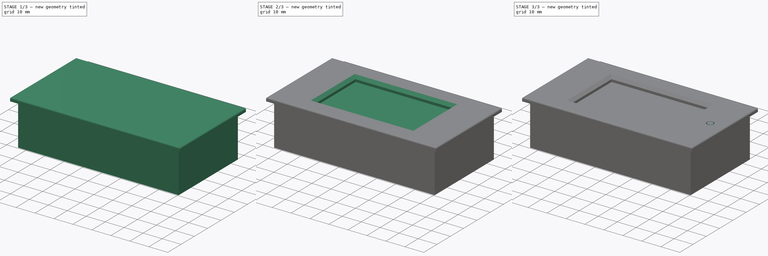
[diagram: build sequence overview — one tinted view per stage of 3, left to right]
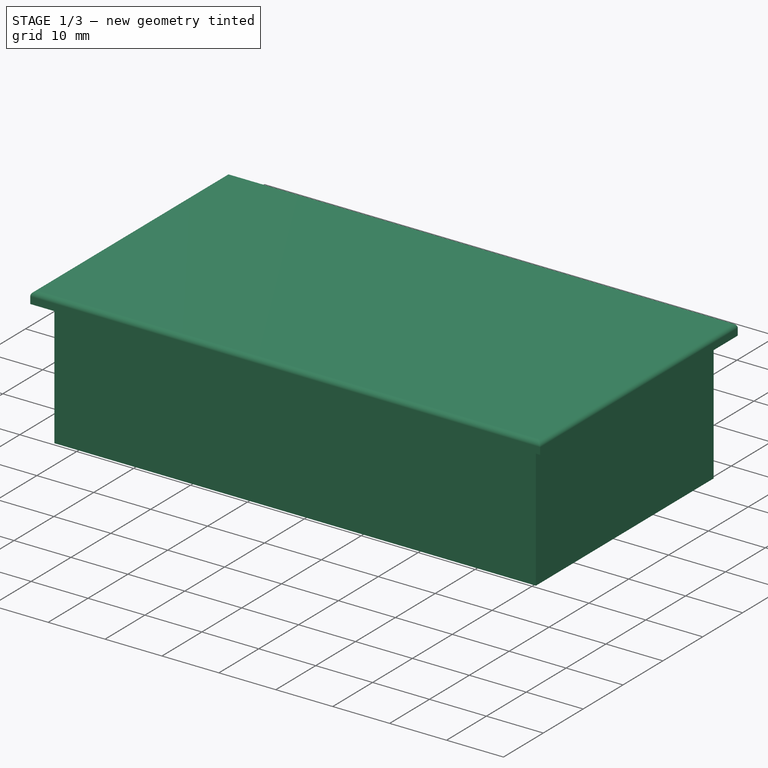
[diagram: stage 1 of 3 — iso view after this stage's code; geometry added in this stage tinted green]
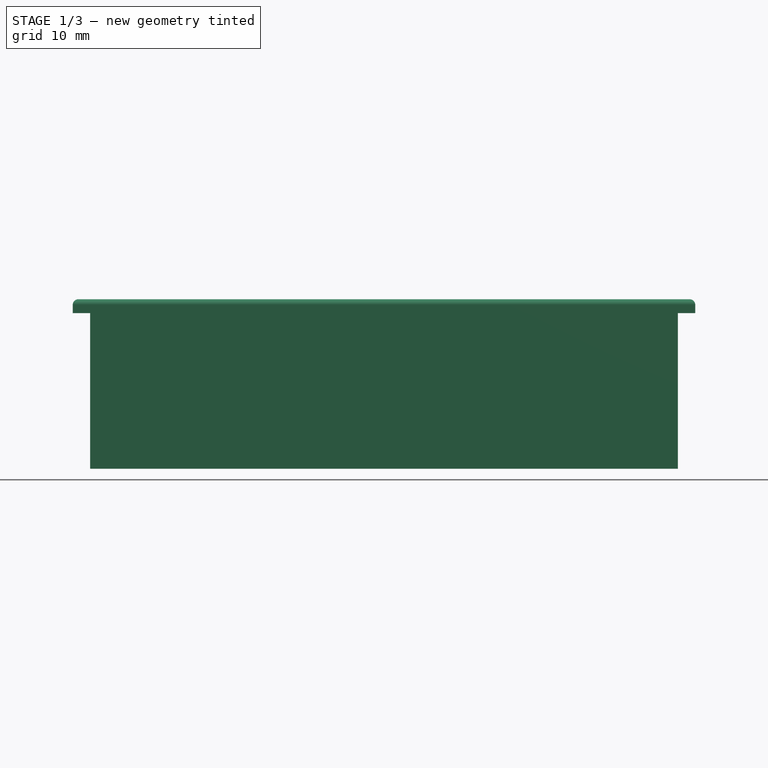
[diagram: stage 1 of 3 — front view after this stage's code; geometry added in this stage tinted green]
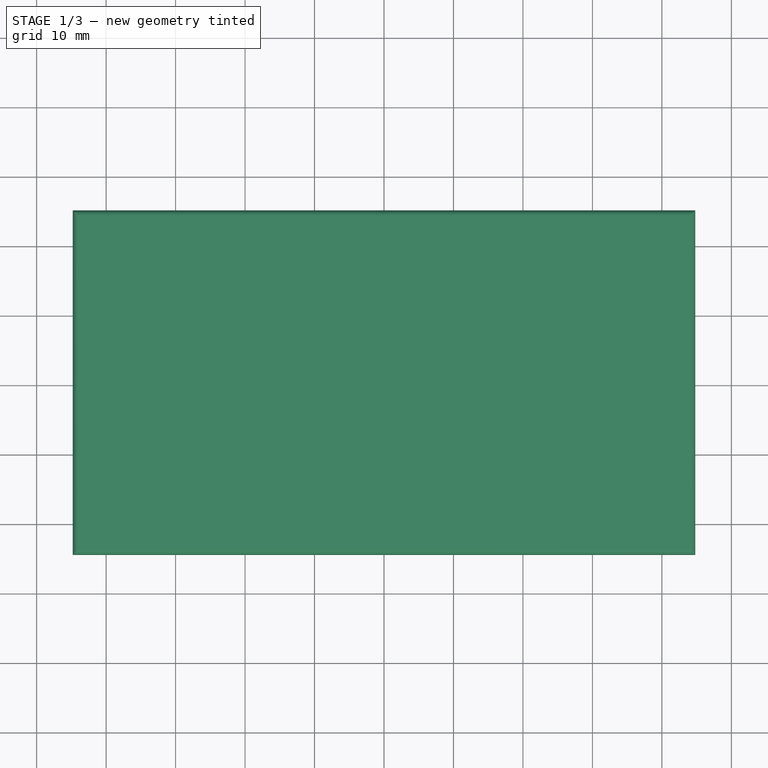
[diagram: stage 1 of 3 — top view after this stage's code; geometry added in this stage tinted green]
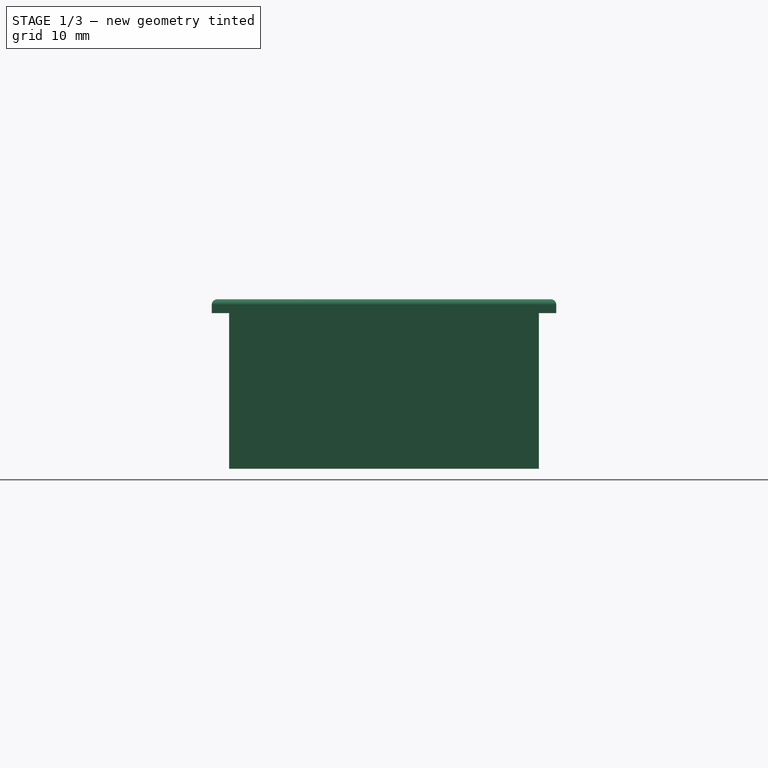
[diagram: stage 1 of 3 — right view after this stage's code; geometry added in this stage tinted green]
FCSTD DOCUMENT  (FreeCAD 0.19R24267 +148 (Git))
Label: KTD132_003
License: Public Domain
LicenseURL: http://en.wikipedia.org/wiki/Public_domain
objects: Sketcher::SketchObject×6, PartDesign::Pad×3, PartDesign::Pocket×3, PartDesign::Plane×2, Spreadsheet::Sheet×1, PartDesign::Fillet×1, PartDesign::Chamfer×1, PartDesign::Body×1, App::Part×1
note: 25 computed .brp shape members not serialized (recipe doc carries the construction recipe); baked Part::Feature solids carry a one-line shape summary decoded from their .brp

FEATURE [Spreadsheet::Sheet] Spreadsheet  label="KTD132"
  cells = A1=largeur; B1(largeur)=49.6; A2=longueur; B2(longueur)=89.59999999999999; A3=hauteur; B3(hauteur)=24.4; A4=trouLargeur; B4(trouLargeur)=44.6; A5=trouLongeur; B5(trouLongeur)=84.59999999999999; A6=trouJeuLong; B6(trouJeuLong)=2.5; A7=trouJeuLarg; B7(trouJeuLarg)=0.8; A8=epaisseurRebord; B8(epaisseurRebord)=2; A9=ecranLargeur; B9(ecranLargeur)=30; A10=ecranLongueur; B10(ecranLongueur)=51; A11=ecranPRof; B11(ecranPRof)=2.82; A12=boutonPosHorizontale; B12(boutonPosHorizontale)=37; A13=boutonDiam; B13(boutonDiam)=3.32; A14=boutonJeuDiam; B14(boutonJeuDiam)=0.3; A15=boutonHauteur; B15(boutonHauteur)=3; A16=lumiereConnecteurLargeur; B16(lumiereConnecteurLargeur)=9; A17=lumiereConnecteurLongueur; B17(lumiereConnecteurLongueur)=26; A18=lumiereConnecteurHauteur; B18(lumiereConnecteurHauteur)=10
FEATURE [Sketcher::SketchObject] Sketch
  FullyConstrained = true
  MapMode = 5
  Support = -> [XY_Plane]
  expr: Constraints[9] = <<KTD132>>.trouLargeur
  expr: Constraints[8] = <<KTD132>>.trouLongeur
  sketch-geometry (4):
    g0: LineSegment StartX=-42.3 StartY=22.3 StartZ=0 EndX=42.3 EndY=22.3 EndZ=0
    g1: LineSegment StartX=42.3 StartY=22.3 StartZ=0 EndX=42.3 EndY=-22.3 EndZ=0
    g2: LineSegment StartX=42.3 StartY=-22.3 StartZ=0 EndX=-42.3 EndY=-22.3 EndZ=0
    g3: LineSegment StartX=-42.3 StartY=-22.3 StartZ=0 EndX=-42.3 EndY=22.3 EndZ=0
  constraints (10):
    c: Coincident(g0,g1)
    c: Coincident(g1,g2)
    c: Coincident(g2,g3)
    c: Coincident(g3,g0)
    c: Horizontal(g2)
    c: Vertical(g1)
    c: Symmetric(g0,g0,g-2)
    c: Symmetric(g0,g2,g-1)
    c: DistanceX(g0,g0) = 84.6
    c: DistanceY(g1,g1) = 44.6
FEATURE [PartDesign::Pad] Pad  label="corpsPrincipal"
  AllowMultiFace = false
  Direction = (1,1,1)
  Length = 22.4
  Length2 = 100
  Profile = -> Sketch
  Reversed = true
  Type = 0
  expr: Length = <<KTD132>>.hauteur - <<KTD132>>.epaisseurRebord
FEATURE [Sketcher::SketchObject] Sketch001
  FullyConstrained = true
  MapMode = 5
  Support = -> [XY_Plane001]
  expr: Constraints[10] = <<KTD132>>.largeur
  expr: Constraints[9] = <<KTD132>>.longueur
  sketch-geometry (4):
    g0: LineSegment StartX=-44.8 StartY=24.8 StartZ=0 EndX=44.8 EndY=24.8 EndZ=0
    g1: LineSegment StartX=44.8 StartY=24.8 StartZ=0 EndX=44.8 EndY=-24.8 EndZ=0
    g2: LineSegment StartX=44.8 StartY=-24.8 StartZ=0 EndX=-44.8 EndY=-24.8 EndZ=0
    g3: LineSegment StartX=-44.8 StartY=-24.8 StartZ=0 EndX=-44.8 EndY=24.8 EndZ=0
  constraints (11):
    c: Coincident(g0,g1)
    c: Coincident(g1,g2)
    c: Coincident(g2,g3)
    c: Coincident(g3,g0)
    c: Horizontal(g0)
    c: Horizontal(g2)
    c: Vertical(g1)
    c: Vertical(g3)
    c: Symmetric(g0,g1,g-1)
    c: DistanceX(g0,g0) = 89.6
    c: DistanceY(g1,g1) = 49.6
FEATURE [PartDesign::Pad] Pad001
  AllowMultiFace = false
  BaseFeature = -> Pad
  Direction = (1,1,1)
  Length = 2
  Length2 = 100
  Profile = -> Sketch001
  Type = 0
  expr: Length = <<KTD132>>.epaisseurRebord
FEATURE [PartDesign::Fillet] Fillet  label="faceAvant"
  Base = -> Pad001 [Edge16,Edge10,Edge4,Edge7]
  BaseFeature = -> Pad001
  Radius = 0.8
  SupportTransform = false
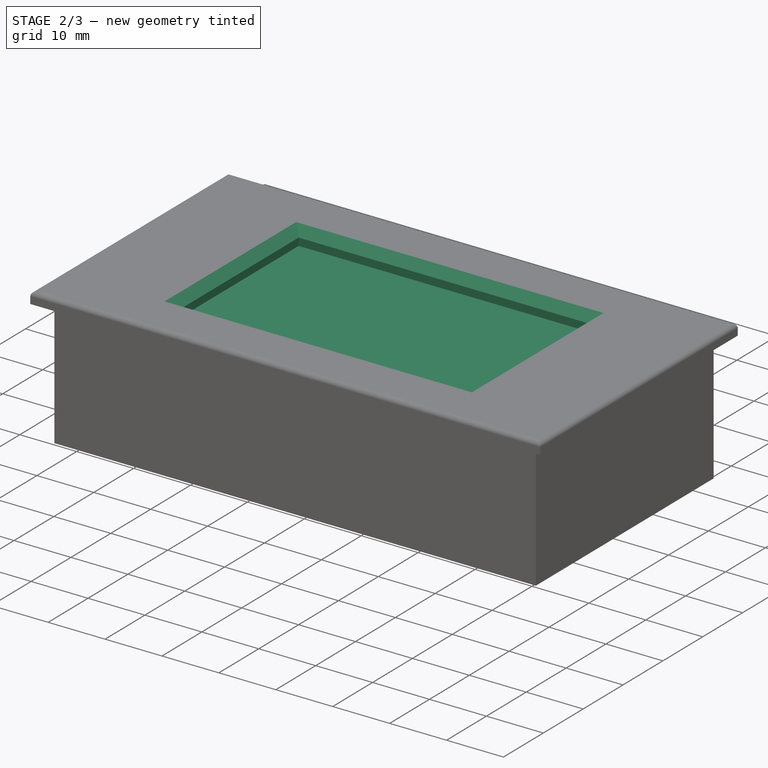
[diagram: stage 2 of 3 — iso view after this stage's code; geometry added in this stage tinted green]
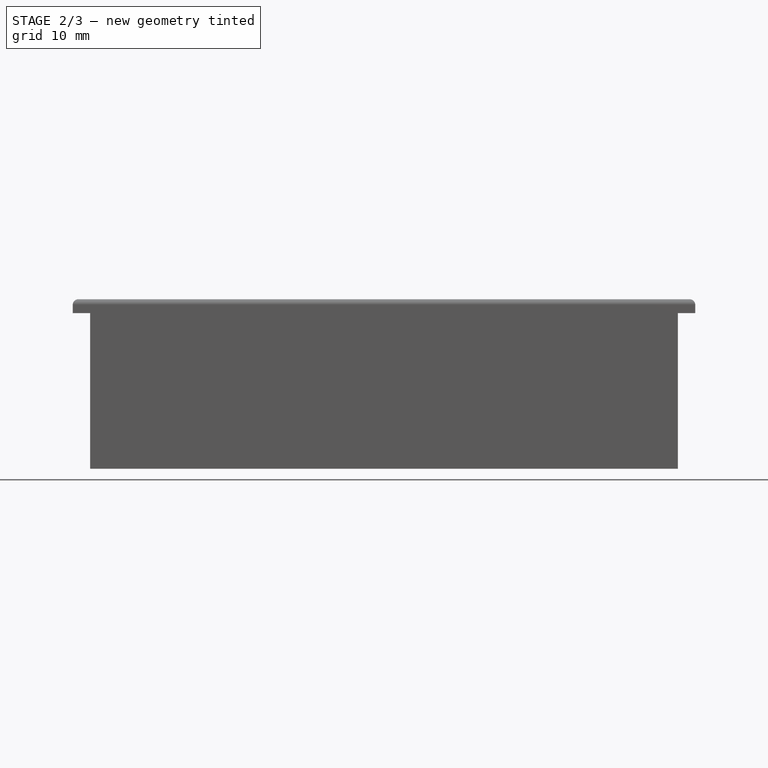
[diagram: stage 2 of 3 — front view after this stage's code; geometry added in this stage tinted green]
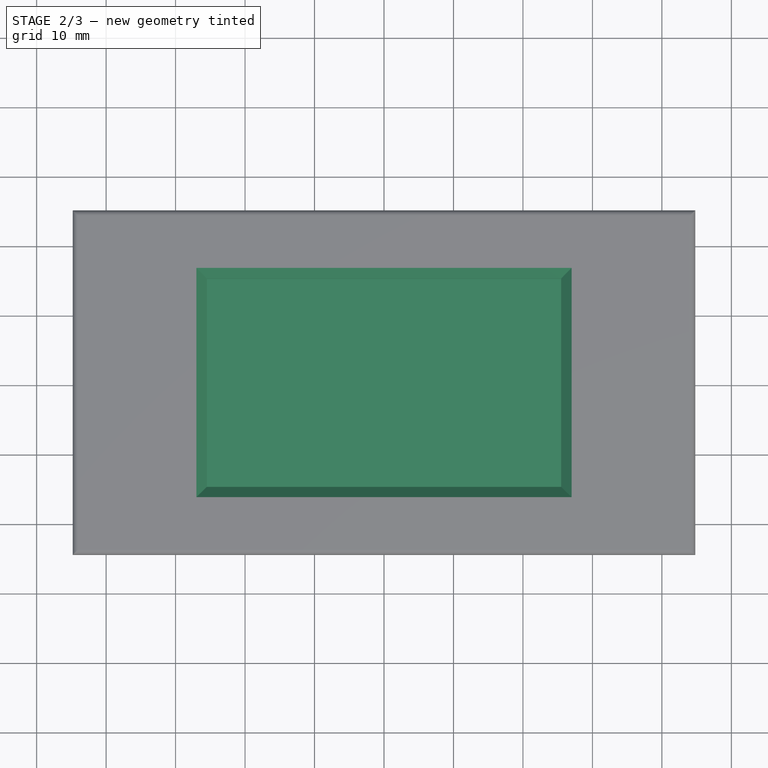
[diagram: stage 2 of 3 — top view after this stage's code; geometry added in this stage tinted green]
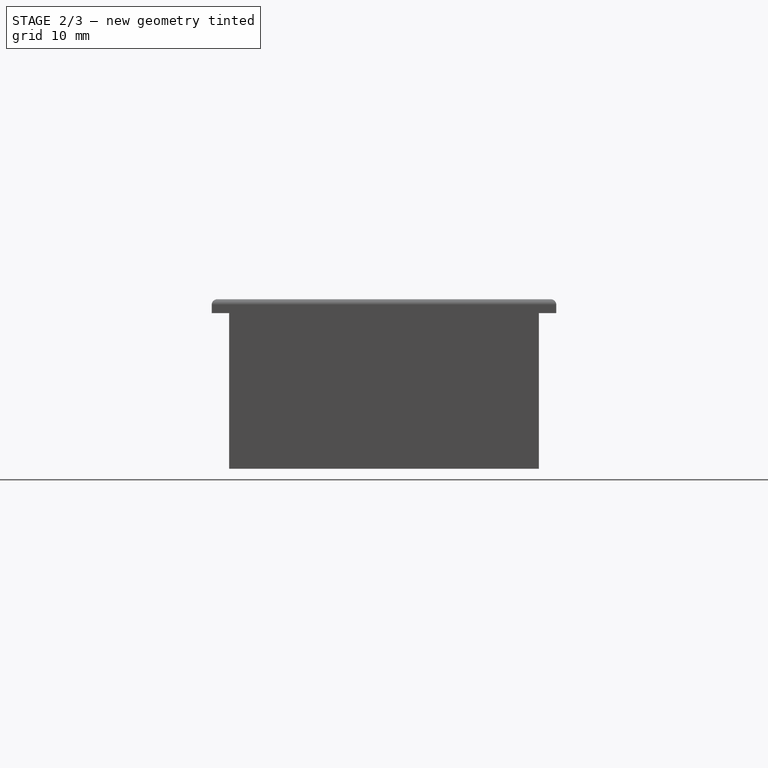
[diagram: stage 2 of 3 — right view after this stage's code; geometry added in this stage tinted green]
FEATURE [Sketcher::SketchObject] Sketch002
  FullyConstrained = true
  MapMode = 5
  Placement = pos=(0,0,2) rot=(0,0,1;0rad)
  Support = -> [Fillet]
  expr: Constraints[9] = <<KTD132>>.ecranLargeur
  expr: Constraints[8] = <<KTD132>>.ecranLongueur
  sketch-geometry (4):
    g0: LineSegment StartX=-25.5 StartY=15 StartZ=0 EndX=25.5 EndY=15 EndZ=0
    g1: LineSegment StartX=25.5 StartY=15 StartZ=0 EndX=25.5 EndY=-15 EndZ=0
    g2: LineSegment StartX=25.5 StartY=-15 StartZ=0 EndX=-25.5 EndY=-15 EndZ=0
    g3: LineSegment StartX=-25.5 StartY=-15 StartZ=0 EndX=-25.5 EndY=15 EndZ=0
  constraints (11):
    c: Coincident(g0,g1)
    c: Coincident(g1,g2)
    c: Coincident(g2,g3)
    c: Coincident(g3,g0)
    c: Horizontal(g0)
    c: Horizontal(g2)
    c: Vertical(g1)
    c: Vertical(g3)
    c: DistanceX(g0,g0) = 51
    c: DistanceY(g1,g1) = 30
    c: Symmetric(g0,g1,g-1)
FEATURE [PartDesign::Pocket] Pocket  label="ecran"
  AllowMultiFace = false
  BaseFeature = -> Fillet
  Length = 2.82
  Length2 = 100
  Profile = -> Sketch002
  Type = 0
  expr: Length = <<KTD132>>.ecranPRof
FEATURE [PartDesign::Chamfer] Chamfer  label="ecranChamfrein"
  Angle = 45
  Base = -> Pocket [Edge27,Edge24,Edge26,Edge25]
  BaseFeature = -> Pocket
  ChamferType = 0
  FlipDirection = false
  Size = 1.5
  Size2 = 1
  SupportTransform = false
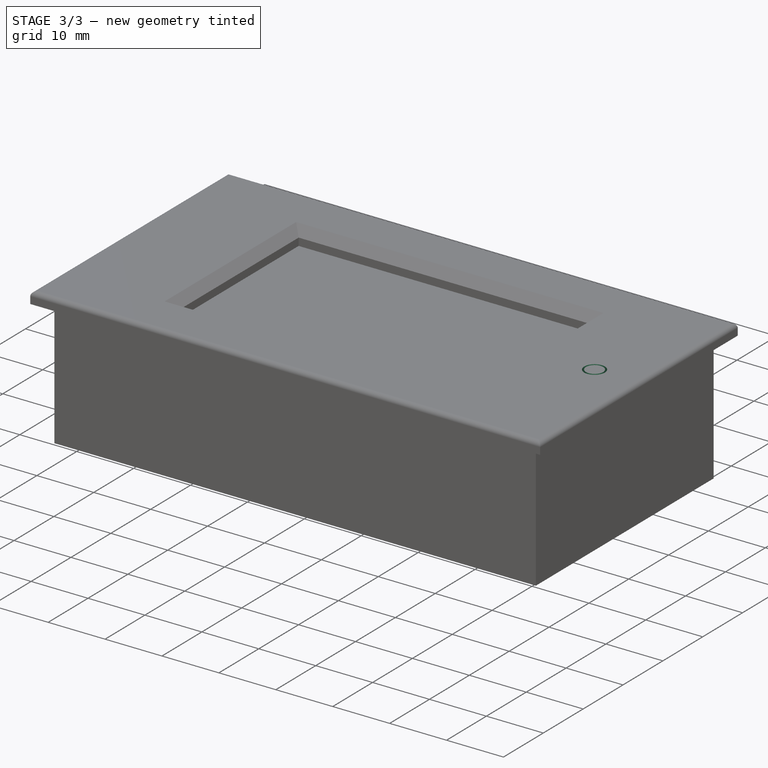
[diagram: stage 3 of 3 — iso view after this stage's code; geometry added in this stage tinted green]
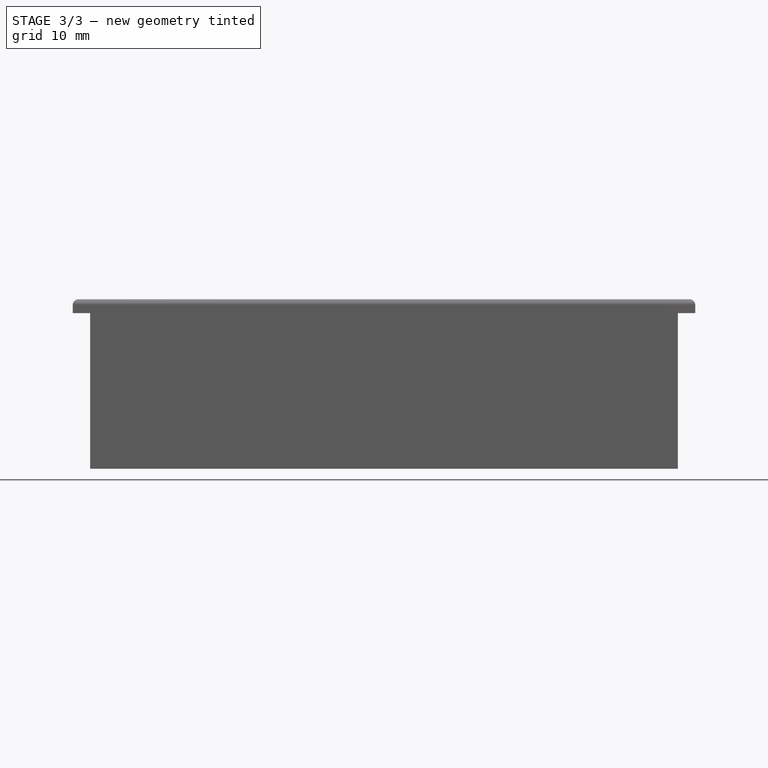
[diagram: stage 3 of 3 — front view after this stage's code; geometry added in this stage tinted green]
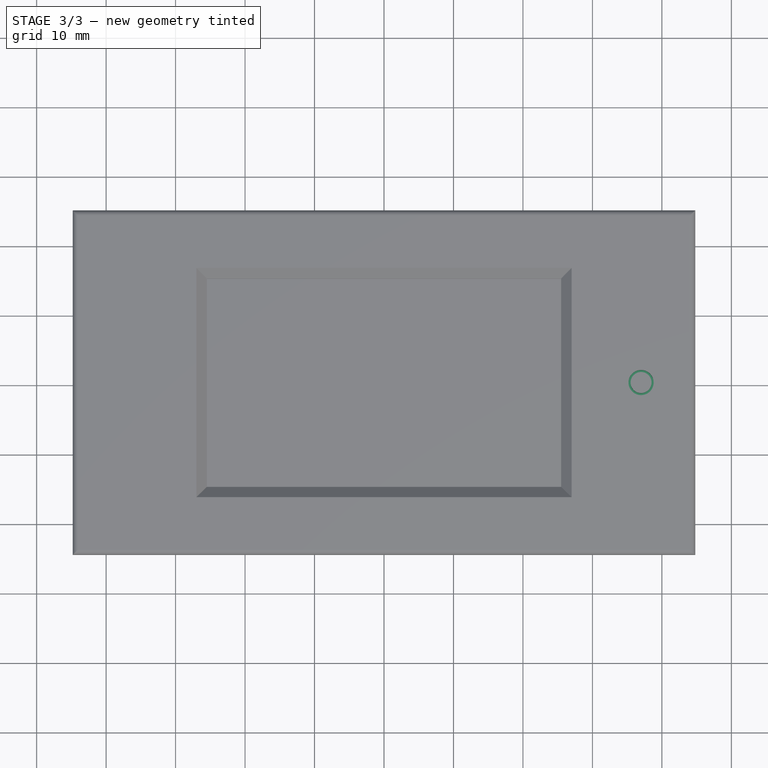
[diagram: stage 3 of 3 — top view after this stage's code; geometry added in this stage tinted green]
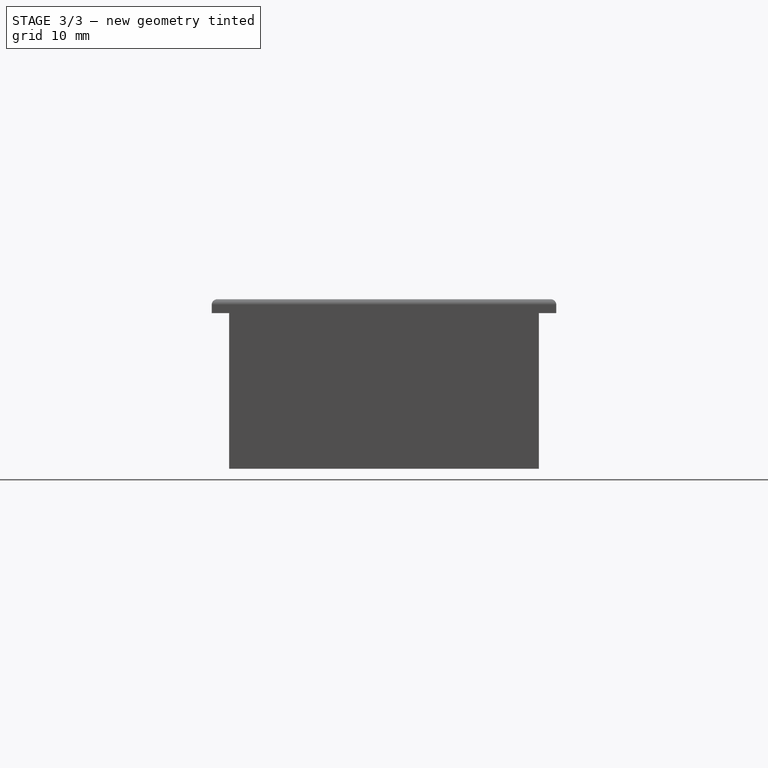
[diagram: stage 3 of 3 — right view after this stage's code; geometry added in this stage tinted green]
FEATURE [Sketcher::SketchObject] Sketch003  label="sk_bouton"
  FullyConstrained = true
  MapMode = 5
  Placement = pos=(0,0,2) rot=(0,0,1;0rad)
  Support = -> [Chamfer]
  expr: Constraints[2] = <<KTD132>>.boutonDiam + <<KTD132>>.boutonJeuDiam
  expr: Constraints[1] = <<KTD132>>.boutonPosHorizontale
  sketch-geometry (1):
    g0: Circle CenterX=37 CenterY=0 CenterZ=0 NormalX=0 NormalY=0 NormalZ=1 AngleXU=0 Radius=1.81
  constraints (3):
    c: PointOnObject(g0,g-1)
    c: DistanceX(g-1,g0) = 37
    c: Diameter(g0) = 3.62
FEATURE [PartDesign::Pocket] Pocket001  label="boutonTrou"
  AllowMultiFace = false
  BaseFeature = -> Chamfer
  Length = 3
  Length2 = 100
  Profile = -> Sketch003
  Type = 0
  expr: Length = <<KTD132>>.boutonHauteur
FEATURE [PartDesign::Plane] DatumPlane
  AttachmentOffset = pos=(0,0,-22.4) rot=(0,0,1;0rad)
  Length = 60
  MapMode = 5
  Placement = pos=(0,0,-22.4) rot=(0,0,1;0rad)
  ResizeMode = 0
  Support = -> [XY_Plane001]
  Width = 60
  expr: .AttachmentOffset.Base.z = -(<<KTD132>>.hauteur - <<KTD132>>.epaisseurRebord)
FEATURE [Sketcher::SketchObject] Sketch006  label="sk_trouConnecteurs"
  FullyConstrained = true
  MapMode = 5
  Placement = pos=(0,0,-22.4) rot=(0,0,1;0rad)
  Support = -> [DatumPlane]
  expr: Constraints[10] = <<KTD132>>.trouLongeur / 2 - <<KTD132>>.lumiereConnecteurLargeur
  expr: Constraints[8] = <<KTD132>>.lumiereConnecteurLongueur
  expr: Constraints[7] = <<KTD132>>.lumiereConnecteurLargeur
  sketch-geometry (4):
    g0: LineSegment StartX=-42.3 StartY=13 StartZ=0 EndX=-33.3 EndY=13 EndZ=0
    g1: LineSegment StartX=-33.3 StartY=13 StartZ=0 EndX=-33.3 EndY=-13 EndZ=0
    g2: LineSegment StartX=-33.3 StartY=-13 StartZ=0 EndX=-42.3 EndY=-13 EndZ=0
    g3: LineSegment StartX=-42.3 StartY=-13 StartZ=0 EndX=-42.3 EndY=13 EndZ=0
  constraints (11):
    c: Coincident(g0,g1)
    c: Coincident(g1,g2)
    c: Coincident(g2,g3)
    c: Coincident(g3,g0)
    c: Horizontal(g0)
    c: Horizontal(g2)
    c: Vertical(g1)
    c: DistanceX(g0,g0) = 9
    c: DistanceY(g3,g3) = 26
    c: Symmetric(g0,g2,g-1)
    c: DistanceX(g1,g-1) = 33.3
FEATURE [PartDesign::Pocket] Pocket002
  BaseFeature = -> Pocket001
  Length = 10
  Length2 = 100
  Profile = -> Sketch006
  Reversed = true
  Type = 0
  expr: Length = <<KTD132>>.lumiereConnecteurHauteur
FEATURE [PartDesign::Plane] DatumPlane001  label="planbaseBouton"
  AttachmentOffset = pos=(0,0,-1) rot=(0,0,1;0rad)
  Length = 60
  MapMode = 5
  Placement = pos=(0,0,-1) rot=(0,0,1;0rad)
  ResizeMode = 0
  Support = -> [XY_Plane001]
  Width = 60
  expr: .AttachmentOffset.Base.z = -(<<KTD132>>.boutonHauteur - <<KTD132>>.epaisseurRebord)
FEATURE [Sketcher::SketchObject] Sketch007
  FullyConstrained = true
  MapMode = 5
  Placement = pos=(0,0,-1) rot=(0,0,1;0rad)
  Support = -> [DatumPlane001]
  expr: Constraints[2] = <<KTD132>>.boutonDiam - <<KTD132>>.boutonJeuDiam
  expr: Constraints[1] = <<KTD132>>.boutonPosHorizontale
  sketch-geometry (1):
    g0: Circle CenterX=37 CenterY=0 CenterZ=0 NormalX=0 NormalY=0 NormalZ=1 AngleXU=0 Radius=1.51
  constraints (3):
    c: PointOnObject(g0,g-1)
    c: DistanceX(g-1,g0) = 37
    c: Diameter(g0) = 3.02
FEATURE [PartDesign::Pad] Pad002
  BaseFeature = -> Pocket002
  Direction = (1,1,1)
  Length = 3
  Length2 = 100
  Profile = -> Sketch007
  Type = 0
  expr: Length = <<KTD132>>.boutonHauteur
FEATURE [PartDesign::Body] Body
  Group = -> [Sketch,Pad,Sketch001,Pad001,Fillet,Sketch002,Pocket,Chamfer,Sketch003,Pocket001,DatumPlane,Sketch006,Pocket002,DatumPlane001,Sketch007,Pad002]
  Origin = -> Origin001
  Tip = -> Pad002
FEATURE [App::Part] Part  label="KTD132UI"
  Group = -> [Body,Spreadsheet]
  Origin = -> Origin
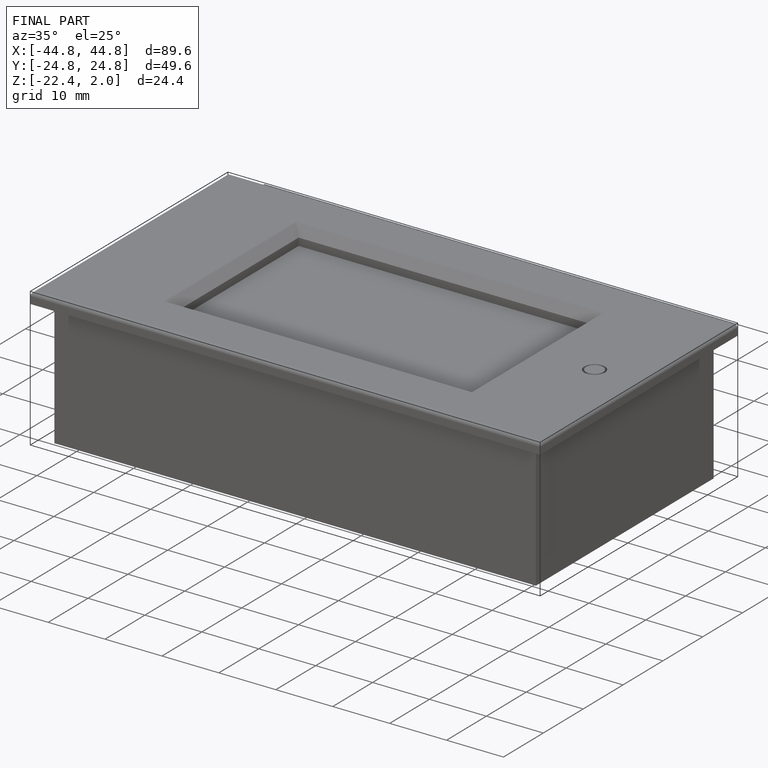
[diagram: finished part — iso view with bounding-box wireframe]
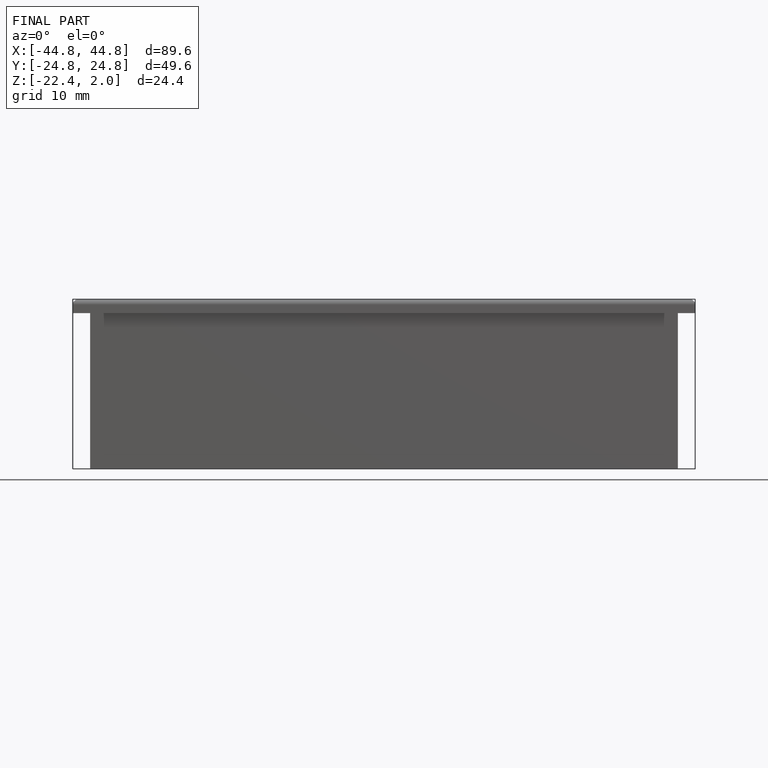
[diagram: finished part — front view with bounding-box wireframe]
